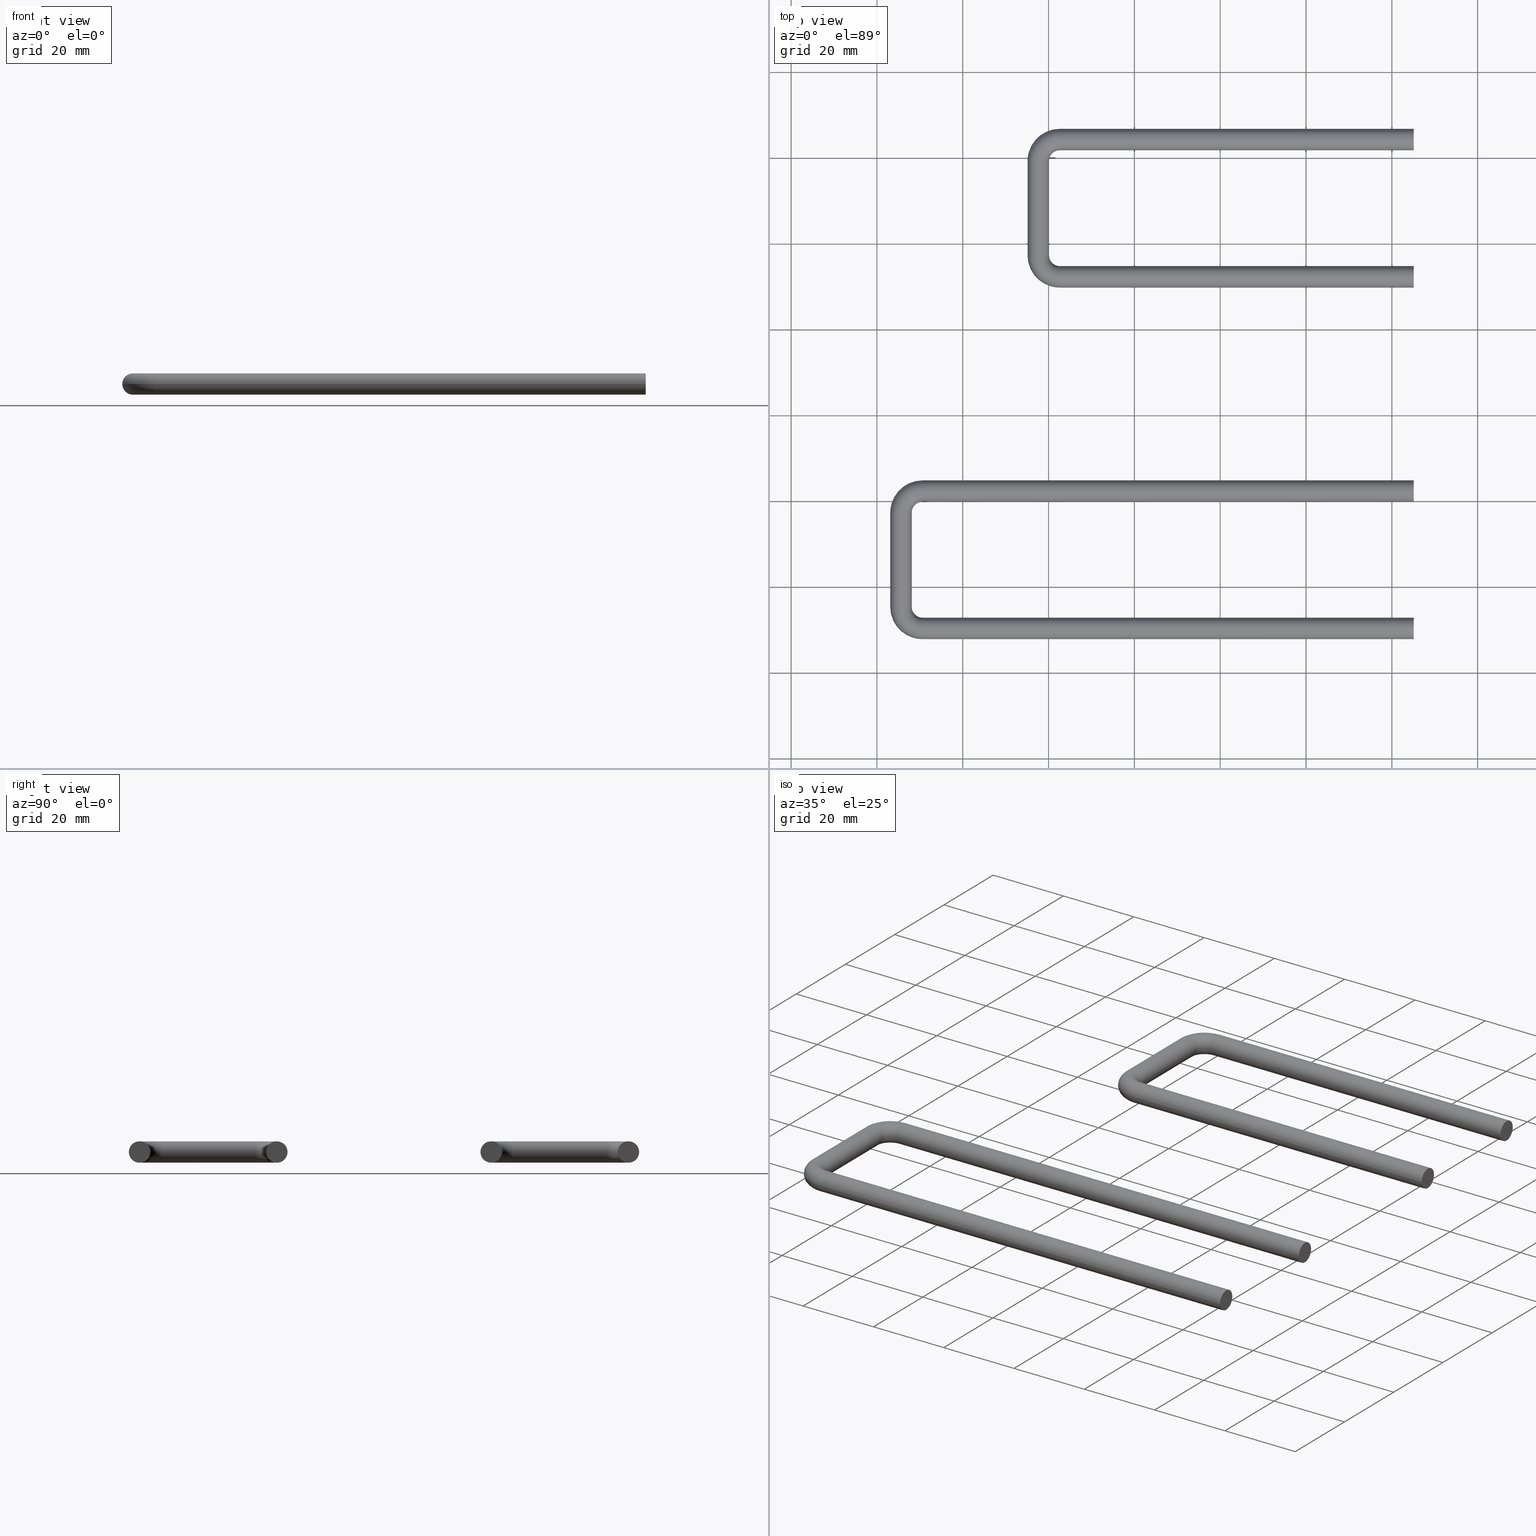
[diagram: canonical four-view strip — front | top / right | iso, engineering-drawing reading convention]
A machine part, canonical four-view strip (front | top / right | iso — engineering-drawing reading convention). The complete STEP part file that produces these views, byte-faithful:
ISO-10303-21;
HEADER;
/* Generated by software containing ST-Developer
 * from STEP Tools, Inc. (www.steptools.com) 
 */

FILE_DESCRIPTION(
/* description */ (''),
/* implementation_level */ '2;1');

FILE_NAME(
/* name */ '\\\\SYNOLOGYNAS\\web\\db2\\C-032-1\\\X2\B3C4BA74\X0\\\C-03
2-1,2.stp',
/* time_stamp */ '2025-01-09T14:08:21+09:00',
/* author */ ('user'),
/* organization */ (''),
/* preprocessor_version */ 'ST-DEVELOPER v15.6',
/* originating_system */ 'Autodesk Inventor 2015',
/* authorisation */ '');

FILE_SCHEMA (('AUTOMOTIVE_DESIGN { 1 0 10303 214 3 1 1 }'));
ENDSEC;

DATA;
#10=MECHANICAL_DESIGN_GEOMETRIC_PRESENTATION_REPRESENTATION('',(#23,#24),
#308);
#11=ITEM_DEFINED_TRANSFORMATION($,$,#165,#194);
#12=ITEM_DEFINED_TRANSFORMATION($,$,#179,#195);
#13=(
REPRESENTATION_RELATIONSHIP($,$,#323,#325)
REPRESENTATION_RELATIONSHIP_WITH_TRANSFORMATION(#11)
SHAPE_REPRESENTATION_RELATIONSHIP()
);
#14=(
REPRESENTATION_RELATIONSHIP($,$,#324,#325)
REPRESENTATION_RELATIONSHIP_WITH_TRANSFORMATION(#12)
SHAPE_REPRESENTATION_RELATIONSHIP()
);
#15=CONTEXT_DEPENDENT_SHAPE_REPRESENTATION(#13,#321);
#16=CONTEXT_DEPENDENT_SHAPE_REPRESENTATION(#14,#322);
#17=NEXT_ASSEMBLY_USAGE_OCCURRENCE('DR_C-032-41FS-90:1',$,$,#329,#327,$);
#18=NEXT_ASSEMBLY_USAGE_OCCURRENCE('DR_C-032-42FS-122:1',$,$,#329,#328,
$);
#19=SHAPE_REPRESENTATION_RELATIONSHIP('SRR','None',#323,#21);
#20=SHAPE_REPRESENTATION_RELATIONSHIP('SRR','None',#324,#22);
#21=ADVANCED_BREP_SHAPE_REPRESENTATION($,(#25),#305);
#22=ADVANCED_BREP_SHAPE_REPRESENTATION($,(#26),#306);
#23=STYLED_ITEM('',(#342),#25);
#24=STYLED_ITEM('',(#343),#26);
#25=MANIFOLD_SOLID_BREP('\X2\C194B9ACB4DC\X0\1',#163);
#26=MANIFOLD_SOLID_BREP('\X2\C194B9ACB4DC\X0\1',#164);
#27=PLANE('',#177);
#28=PLANE('',#178);
#29=PLANE('',#191);
#30=PLANE('',#192);
#31=TOROIDAL_SURFACE('',#169,5.,2.5);
#32=TOROIDAL_SURFACE('',#173,5.,2.5);
#33=TOROIDAL_SURFACE('',#183,5.,2.5);
#34=TOROIDAL_SURFACE('',#187,5.,2.5);
#35=FACE_BOUND('',#60,.T.);
#36=FACE_BOUND('',#62,.T.);
#37=FACE_BOUND('',#64,.T.);
#38=FACE_BOUND('',#66,.T.);
#39=FACE_BOUND('',#68,.T.);
#40=FACE_BOUND('',#72,.T.);
#41=FACE_BOUND('',#74,.T.);
#42=FACE_BOUND('',#76,.T.);
#43=FACE_BOUND('',#78,.T.);
#44=FACE_BOUND('',#80,.T.);
#45=FACE_OUTER_BOUND('',#59,.T.);
#46=FACE_OUTER_BOUND('',#61,.T.);
#47=FACE_OUTER_BOUND('',#63,.T.);
#48=FACE_OUTER_BOUND('',#65,.T.);
#49=FACE_OUTER_BOUND('',#67,.T.);
#50=FACE_OUTER_BOUND('',#69,.T.);
#51=FACE_OUTER_BOUND('',#70,.T.);
#52=FACE_OUTER_BOUND('',#71,.T.);
#53=FACE_OUTER_BOUND('',#73,.T.);
#54=FACE_OUTER_BOUND('',#75,.T.);
#55=FACE_OUTER_BOUND('',#77,.T.);
#56=FACE_OUTER_BOUND('',#79,.T.);
#57=FACE_OUTER_BOUND('',#81,.T.);
#58=FACE_OUTER_BOUND('',#82,.T.);
#59=EDGE_LOOP('',(#119));
#60=EDGE_LOOP('',(#120));
#61=EDGE_LOOP('',(#121));
#62=EDGE_LOOP('',(#122));
#63=EDGE_LOOP('',(#123));
#64=EDGE_LOOP('',(#124));
#65=EDGE_LOOP('',(#125));
#66=EDGE_LOOP('',(#126));
#67=EDGE_LOOP('',(#127));
#68=EDGE_LOOP('',(#128));
#69=EDGE_LOOP('',(#129));
#70=EDGE_LOOP('',(#130));
#71=EDGE_LOOP('',(#131));
#72=EDGE_LOOP('',(#132));
#73=EDGE_LOOP('',(#133));
#74=EDGE_LOOP('',(#134));
#75=EDGE_LOOP('',(#135));
#76=EDGE_LOOP('',(#136));
#77=EDGE_LOOP('',(#137));
#78=EDGE_LOOP('',(#138));
#79=EDGE_LOOP('',(#139));
#80=EDGE_LOOP('',(#140));
#81=EDGE_LOOP('',(#141));
#82=EDGE_LOOP('',(#142));
#83=CIRCLE('',#167,2.5);
#84=CIRCLE('',#168,2.5);
#85=CIRCLE('',#170,2.5);
#86=CIRCLE('',#172,2.5);
#87=CIRCLE('',#174,2.5);
#88=CIRCLE('',#176,2.5);
#89=CIRCLE('',#181,2.5);
#90=CIRCLE('',#182,2.5);
#91=CIRCLE('',#184,2.5);
#92=CIRCLE('',#186,2.5);
#93=CIRCLE('',#188,2.5);
#94=CIRCLE('',#190,2.5);
#95=VERTEX_POINT('',#260);
#96=VERTEX_POINT('',#262);
#97=VERTEX_POINT('',#265);
#98=VERTEX_POINT('',#268);
#99=VERTEX_POINT('',#271);
#100=VERTEX_POINT('',#274);
#101=VERTEX_POINT('',#280);
#102=VERTEX_POINT('',#282);
#103=VERTEX_POINT('',#285);
#104=VERTEX_POINT('',#288);
#105=VERTEX_POINT('',#291);
#106=VERTEX_POINT('',#294);
#107=EDGE_CURVE('',#95,#95,#83,.T.);
#108=EDGE_CURVE('',#96,#96,#84,.T.);
#109=EDGE_CURVE('',#97,#97,#85,.T.);
#110=EDGE_CURVE('',#98,#98,#86,.T.);
#111=EDGE_CURVE('',#99,#99,#87,.T.);
#112=EDGE_CURVE('',#100,#100,#88,.T.);
#113=EDGE_CURVE('',#101,#101,#89,.T.);
#114=EDGE_CURVE('',#102,#102,#90,.T.);
#115=EDGE_CURVE('',#103,#103,#91,.T.);
#116=EDGE_CURVE('',#104,#104,#92,.T.);
#117=EDGE_CURVE('',#105,#105,#93,.T.);
#118=EDGE_CURVE('',#106,#106,#94,.T.);
#119=ORIENTED_EDGE('',*,*,#107,.F.);
#120=ORIENTED_EDGE('',*,*,#108,.T.);
#121=ORIENTED_EDGE('',*,*,#108,.F.);
#122=ORIENTED_EDGE('',*,*,#109,.T.);
#123=ORIENTED_EDGE('',*,*,#109,.F.);
#124=ORIENTED_EDGE('',*,*,#110,.T.);
#125=ORIENTED_EDGE('',*,*,#110,.F.);
#126=ORIENTED_EDGE('',*,*,#111,.T.);
#127=ORIENTED_EDGE('',*,*,#111,.F.);
#128=ORIENTED_EDGE('',*,*,#112,.T.);
#129=ORIENTED_EDGE('',*,*,#107,.T.);
#130=ORIENTED_EDGE('',*,*,#112,.F.);
#131=ORIENTED_EDGE('',*,*,#113,.F.);
#132=ORIENTED_EDGE('',*,*,#114,.T.);
#133=ORIENTED_EDGE('',*,*,#114,.F.);
#134=ORIENTED_EDGE('',*,*,#115,.T.);
#135=ORIENTED_EDGE('',*,*,#115,.F.);
#136=ORIENTED_EDGE('',*,*,#116,.T.);
#137=ORIENTED_EDGE('',*,*,#116,.F.);
#138=ORIENTED_EDGE('',*,*,#117,.T.);
#139=ORIENTED_EDGE('',*,*,#117,.F.);
#140=ORIENTED_EDGE('',*,*,#118,.T.);
#141=ORIENTED_EDGE('',*,*,#113,.T.);
#142=ORIENTED_EDGE('',*,*,#118,.F.);
#143=CYLINDRICAL_SURFACE('',#166,2.5);
#144=CYLINDRICAL_SURFACE('',#171,2.5);
#145=CYLINDRICAL_SURFACE('',#175,2.5);
#146=CYLINDRICAL_SURFACE('',#180,2.5);
#147=CYLINDRICAL_SURFACE('',#185,2.5);
#148=CYLINDRICAL_SURFACE('',#189,2.5);
#149=ADVANCED_FACE('',(#45,#35),#143,.T.);
#150=ADVANCED_FACE('',(#46,#36),#31,.T.);
#151=ADVANCED_FACE('',(#47,#37),#144,.T.);
#152=ADVANCED_FACE('',(#48,#38),#32,.T.);
#153=ADVANCED_FACE('',(#49,#39),#145,.T.);
#154=ADVANCED_FACE('',(#50),#27,.T.);
#155=ADVANCED_FACE('',(#51),#28,.F.);
#156=ADVANCED_FACE('',(#52,#40),#146,.T.);
#157=ADVANCED_FACE('',(#53,#41),#33,.T.);
#158=ADVANCED_FACE('',(#54,#42),#147,.T.);
#159=ADVANCED_FACE('',(#55,#43),#34,.T.);
#160=ADVANCED_FACE('',(#56,#44),#148,.T.);
#161=ADVANCED_FACE('',(#57),#29,.T.);
#162=ADVANCED_FACE('',(#58),#30,.F.);
#163=CLOSED_SHELL('',(#149,#150,#151,#152,#153,#154,#155));
#164=CLOSED_SHELL('',(#156,#157,#158,#159,#160,#161,#162));
#165=AXIS2_PLACEMENT_3D('placement',#258,#196,#197);
#166=AXIS2_PLACEMENT_3D('',#259,#198,#199);
#167=AXIS2_PLACEMENT_3D('',#261,#200,#201);
#168=AXIS2_PLACEMENT_3D('',#263,#202,#203);
#169=AXIS2_PLACEMENT_3D('',#264,#204,#205);
#170=AXIS2_PLACEMENT_3D('',#266,#206,#207);
#171=AXIS2_PLACEMENT_3D('',#267,#208,#209);
#172=AXIS2_PLACEMENT_3D('',#269,#210,#211);
#173=AXIS2_PLACEMENT_3D('',#270,#212,#213);
#174=AXIS2_PLACEMENT_3D('',#272,#214,#215);
#175=AXIS2_PLACEMENT_3D('',#273,#216,#217);
#176=AXIS2_PLACEMENT_3D('',#275,#218,#219);
#177=AXIS2_PLACEMENT_3D('',#276,#220,#221);
#178=AXIS2_PLACEMENT_3D('',#277,#222,#223);
#179=AXIS2_PLACEMENT_3D('placement',#278,#224,#225);
#180=AXIS2_PLACEMENT_3D('',#279,#226,#227);
#181=AXIS2_PLACEMENT_3D('',#281,#228,#229);
#182=AXIS2_PLACEMENT_3D('',#283,#230,#231);
#183=AXIS2_PLACEMENT_3D('',#284,#232,#233);
#184=AXIS2_PLACEMENT_3D('',#286,#234,#235);
#185=AXIS2_PLACEMENT_3D('',#287,#236,#237);
#186=AXIS2_PLACEMENT_3D('',#289,#238,#239);
#187=AXIS2_PLACEMENT_3D('',#290,#240,#241);
#188=AXIS2_PLACEMENT_3D('',#292,#242,#243);
#189=AXIS2_PLACEMENT_3D('',#293,#244,#245);
#190=AXIS2_PLACEMENT_3D('',#295,#246,#247);
#191=AXIS2_PLACEMENT_3D('',#296,#248,#249);
#192=AXIS2_PLACEMENT_3D('',#297,#250,#251);
#193=AXIS2_PLACEMENT_3D('placement',#298,#252,#253);
#194=AXIS2_PLACEMENT_3D('',#299,#254,#255);
#195=AXIS2_PLACEMENT_3D('',#300,#256,#257);
#196=DIRECTION('axis',(0.,0.,1.));
#197=DIRECTION('refdir',(1.,0.,0.));
#198=DIRECTION('center_axis',(1.,0.,0.));
#199=DIRECTION('ref_axis',(0.,1.,0.));
#200=DIRECTION('center_axis',(1.,7.11884744652049E-16,0.));
#201=DIRECTION('ref_axis',(-7.11884744652049E-16,1.,0.));
#202=DIRECTION('center_axis',(1.,7.11884744652049E-16,0.));
#203=DIRECTION('ref_axis',(-7.11884744652049E-16,1.,0.));
#204=DIRECTION('center_axis',(0.,0.,1.));
#205=DIRECTION('ref_axis',(1.,0.,0.));
#206=DIRECTION('center_axis',(-1.15061335090709E-16,-1.,0.));
#207=DIRECTION('ref_axis',(1.,-1.15061335090709E-16,0.));
#208=DIRECTION('center_axis',(0.,-1.,0.));
#209=DIRECTION('ref_axis',(1.,0.,0.));
#210=DIRECTION('center_axis',(-1.15061335090709E-16,-1.,0.));
#211=DIRECTION('ref_axis',(1.,-1.15061335090709E-16,0.));
#212=DIRECTION('center_axis',(0.,0.,1.));
#213=DIRECTION('ref_axis',(1.,0.,0.));
#214=DIRECTION('center_axis',(-1.,5.38289951333409E-17,0.));
#215=DIRECTION('ref_axis',(-5.38289951333409E-17,-1.,0.));
#216=DIRECTION('center_axis',(-1.,5.38289951333409E-17,0.));
#217=DIRECTION('ref_axis',(-5.38289951333409E-17,-1.,0.));
#218=DIRECTION('center_axis',(-1.,5.38289951333409E-17,0.));
#219=DIRECTION('ref_axis',(-5.38289951333409E-17,-1.,0.));
#220=DIRECTION('center_axis',(1.,7.11884744652049E-16,0.));
#221=DIRECTION('ref_axis',(0.,0.,1.));
#222=DIRECTION('center_axis',(-1.,5.38289951333409E-17,0.));
#223=DIRECTION('ref_axis',(0.,0.,1.));
#224=DIRECTION('axis',(0.,0.,1.));
#225=DIRECTION('refdir',(1.,0.,0.));
#226=DIRECTION('center_axis',(1.,1.35747793403949E-16,0.));
#227=DIRECTION('ref_axis',(-1.35747793403949E-16,1.,0.));
#228=DIRECTION('center_axis',(1.,1.10245823063463E-16,0.));
#229=DIRECTION('ref_axis',(-1.10245823063463E-16,1.,0.));
#230=DIRECTION('center_axis',(1.,1.10245823063463E-16,0.));
#231=DIRECTION('ref_axis',(-1.10245823063463E-16,1.,0.));
#232=DIRECTION('center_axis',(0.,0.,1.));
#233=DIRECTION('ref_axis',(1.,0.,0.));
#234=DIRECTION('center_axis',(1.71478163020831E-16,-1.,0.));
#235=DIRECTION('ref_axis',(1.,1.71478163020831E-16,0.));
#236=DIRECTION('center_axis',(0.,-1.,0.));
#237=DIRECTION('ref_axis',(1.,0.,0.));
#238=DIRECTION('center_axis',(1.71478163020831E-16,-1.,0.));
#239=DIRECTION('ref_axis',(1.,1.71478163020831E-16,0.));
#240=DIRECTION('center_axis',(0.,0.,1.));
#241=DIRECTION('ref_axis',(1.,0.,0.));
#242=DIRECTION('center_axis',(-1.,-2.32710502978199E-16,0.));
#243=DIRECTION('ref_axis',(2.32710502978199E-16,-1.,0.));
#244=DIRECTION('center_axis',(-1.,-2.32710502978199E-16,0.));
#245=DIRECTION('ref_axis',(2.32710502978199E-16,-1.,0.));
#246=DIRECTION('center_axis',(-1.,-2.32710502978199E-16,0.));
#247=DIRECTION('ref_axis',(2.32710502978199E-16,-1.,0.));
#248=DIRECTION('center_axis',(1.,1.10245823063463E-16,0.));
#249=DIRECTION('ref_axis',(0.,0.,1.));
#250=DIRECTION('center_axis',(-1.,-2.32710502978199E-16,0.));
#251=DIRECTION('ref_axis',(0.,0.,1.));
#252=DIRECTION('axis',(0.,0.,1.));
#253=DIRECTION('refdir',(1.,0.,0.));
#254=DIRECTION('',(2.47198095326689E-16,-1.50487261540985E-16,1.));
#255=DIRECTION('',(1.,-3.6914915568786E-15,-2.4719809532669E-16));
#256=DIRECTION('',(5.66489797305112E-17,-1.10154940724507E-16,1.));
#257=DIRECTION('',(1.,7.77156117237594E-16,-5.66489797305112E-17));
#258=CARTESIAN_POINT('',(0.,0.,0.));
#259=CARTESIAN_POINT('Origin',(-38.75,-16.,0.));
#260=CARTESIAN_POINT('',(43.75,-18.5,3.06161699786838E-16));
#261=CARTESIAN_POINT('Origin',(43.75,-16.,0.));
#262=CARTESIAN_POINT('',(-38.75,-18.5,3.06161699786838E-16));
#263=CARTESIAN_POINT('Origin',(-38.75,-16.,0.));
#264=CARTESIAN_POINT('Origin',(-38.75,-11.,0.));
#265=CARTESIAN_POINT('',(-46.25,-11.,3.06161699786838E-16));
#266=CARTESIAN_POINT('Origin',(-43.75,-11.,0.));
#267=CARTESIAN_POINT('Origin',(-43.75,11.,0.));
#268=CARTESIAN_POINT('',(-46.25,11.,3.06161699786838E-16));
#269=CARTESIAN_POINT('Origin',(-43.75,11.,0.));
#270=CARTESIAN_POINT('Origin',(-38.75,11.,0.));
#271=CARTESIAN_POINT('',(-38.75,18.5,3.06161699786838E-16));
#272=CARTESIAN_POINT('Origin',(-38.75,16.,0.));
#273=CARTESIAN_POINT('Origin',(43.75,16.,0.));
#274=CARTESIAN_POINT('',(43.75,18.5,3.06161699786838E-16));
#275=CARTESIAN_POINT('Origin',(43.75,16.,0.));
#276=CARTESIAN_POINT('Origin',(43.75,-16.,4.62592926927149E-17));
#277=CARTESIAN_POINT('Origin',(43.75,16.,4.62592926927149E-17));
#278=CARTESIAN_POINT('',(0.,0.,0.));
#279=CARTESIAN_POINT('Origin',(-54.75,-16.,0.));
#280=CARTESIAN_POINT('',(59.75,-18.5,3.06161699786838E-16));
#281=CARTESIAN_POINT('Origin',(59.75,-16.,0.));
#282=CARTESIAN_POINT('',(-54.75,-18.5,3.06161699786838E-16));
#283=CARTESIAN_POINT('Origin',(-54.75,-16.,0.));
#284=CARTESIAN_POINT('Origin',(-54.75,-11.,0.));
#285=CARTESIAN_POINT('',(-62.25,-11.,3.06161699786838E-16));
#286=CARTESIAN_POINT('Origin',(-59.75,-11.,0.));
#287=CARTESIAN_POINT('Origin',(-59.75,11.,0.));
#288=CARTESIAN_POINT('',(-62.25,11.,3.06161699786838E-16));
#289=CARTESIAN_POINT('Origin',(-59.75,11.,0.));
#290=CARTESIAN_POINT('Origin',(-54.75,11.,0.));
#291=CARTESIAN_POINT('',(-54.75,18.5,3.06161699786838E-16));
#292=CARTESIAN_POINT('Origin',(-54.75,16.,0.));
#293=CARTESIAN_POINT('Origin',(59.75,16.,0.));
#294=CARTESIAN_POINT('',(59.75,18.5,3.06161699786838E-16));
#295=CARTESIAN_POINT('Origin',(59.75,16.,0.));
#296=CARTESIAN_POINT('Origin',(59.75,-16.,4.62592926927149E-17));
#297=CARTESIAN_POINT('Origin',(59.75,16.,4.62592926927149E-17));
#298=CARTESIAN_POINT('',(0.,0.,0.));
#299=CARTESIAN_POINT('',(121.354482219658,108.29472418712,5.01136735198646));
#300=CARTESIAN_POINT('',(105.354482219657,26.3495931122391,5.00858498435936));
#301=UNCERTAINTY_MEASURE_WITH_UNIT(LENGTH_MEASURE(0.01),#309,
'DISTANCE_ACCURACY_VALUE',
'Maximum model space distance between geometric entities at asserted c
onnectivities');
#302=UNCERTAINTY_MEASURE_WITH_UNIT(LENGTH_MEASURE(0.01),#309,
'DISTANCE_ACCURACY_VALUE',
'Maximum model space distance between geometric entities at asserted c
onnectivities');
#303=UNCERTAINTY_MEASURE_WITH_UNIT(LENGTH_MEASURE(0.01),#309,
'DISTANCE_ACCURACY_VALUE',
'Maximum model space distance between geometric entities at asserted c
onnectivities');
#304=UNCERTAINTY_MEASURE_WITH_UNIT(LENGTH_MEASURE(1.E-6),#309,
'DISTANCE_ACCURACY_VALUE',
'Maximum model space distance between geometric entities at asserted c
onnectivities');
#305=(
GEOMETRIC_REPRESENTATION_CONTEXT(3)
GLOBAL_UNCERTAINTY_ASSIGNED_CONTEXT((#301))
GLOBAL_UNIT_ASSIGNED_CONTEXT((#309,#312,#310))
REPRESENTATION_CONTEXT('','3D')
);
#306=(
GEOMETRIC_REPRESENTATION_CONTEXT(3)
GLOBAL_UNCERTAINTY_ASSIGNED_CONTEXT((#302))
GLOBAL_UNIT_ASSIGNED_CONTEXT((#309,#312,#310))
REPRESENTATION_CONTEXT('','3D')
);
#307=(
GEOMETRIC_REPRESENTATION_CONTEXT(3)
GLOBAL_UNCERTAINTY_ASSIGNED_CONTEXT((#303))
GLOBAL_UNIT_ASSIGNED_CONTEXT((#309,#312,#310))
REPRESENTATION_CONTEXT('','3D')
);
#308=(
GEOMETRIC_REPRESENTATION_CONTEXT(3)
GLOBAL_UNCERTAINTY_ASSIGNED_CONTEXT((#304))
GLOBAL_UNIT_ASSIGNED_CONTEXT((#309,#312,#310))
REPRESENTATION_CONTEXT('','3D')
);
#309=(
LENGTH_UNIT()
NAMED_UNIT(*)
SI_UNIT(.MILLI.,.METRE.)
);
#310=(
NAMED_UNIT(*)
SI_UNIT($,.STERADIAN.)
SOLID_ANGLE_UNIT()
);
#311=DIMENSIONAL_EXPONENTS(0.,0.,0.,0.,0.,0.,0.);
#312=(
CONVERSION_BASED_UNIT('degree',#314)
NAMED_UNIT(#311)
PLANE_ANGLE_UNIT()
);
#313=(
NAMED_UNIT(*)
PLANE_ANGLE_UNIT()
SI_UNIT($,.RADIAN.)
);
#314=PLANE_ANGLE_MEASURE_WITH_UNIT(PLANE_ANGLE_MEASURE(0.01745329252),#313);
#315=SHAPE_DEFINITION_REPRESENTATION(#318,#323);
#316=SHAPE_DEFINITION_REPRESENTATION(#319,#324);
#317=SHAPE_DEFINITION_REPRESENTATION(#320,#325);
#318=PRODUCT_DEFINITION_SHAPE('',$,#327);
#319=PRODUCT_DEFINITION_SHAPE('',$,#328);
#320=PRODUCT_DEFINITION_SHAPE('',$,#329);
#321=PRODUCT_DEFINITION_SHAPE($,$,#17);
#322=PRODUCT_DEFINITION_SHAPE($,$,#18);
#323=SHAPE_REPRESENTATION('',(#165),#305);
#324=SHAPE_REPRESENTATION('',(#179),#306);
#325=SHAPE_REPRESENTATION('',(#193,#194,#195),#307);
#326=PRODUCT_DEFINITION_CONTEXT('part definition',#337,'design');
#327=PRODUCT_DEFINITION('DR_C-032-41FS-90','DR_C-032-41FS-90',#330,#326);
#328=PRODUCT_DEFINITION('DR_C-032-42FS-122','DR_C-032-42FS-122',#331,#326);
#329=PRODUCT_DEFINITION('C-032-1,2(90,122)','C-032-1,2(90,122)',#332,#326);
#330=PRODUCT_DEFINITION_FORMATION('',$,#339);
#331=PRODUCT_DEFINITION_FORMATION('',$,#340);
#332=PRODUCT_DEFINITION_FORMATION('',$,#341);
#333=PRODUCT_RELATED_PRODUCT_CATEGORY('DR_C-032-41FS-90',
'DR_C-032-41FS-90',(#339));
#334=PRODUCT_RELATED_PRODUCT_CATEGORY('DR_C-032-42FS-122',
'DR_C-032-42FS-122',(#340));
#335=PRODUCT_RELATED_PRODUCT_CATEGORY('C-032-1,2(90,122)',
'C-032-1,2(90,122)',(#341));
#336=APPLICATION_PROTOCOL_DEFINITION('international standard',
'automotive_design',2009,#337);
#337=APPLICATION_CONTEXT(
'Core Data for Automotive Mechanical Design Process');
#338=PRODUCT_CONTEXT('part definition',#337,'mechanical');
#339=PRODUCT('DR_C-032-41FS-90','DR_C-032-41FS-90',$,(#338));
#340=PRODUCT('DR_C-032-42FS-122','DR_C-032-42FS-122',$,(#338));
#341=PRODUCT('C-032-1,2(90,122)','C-032-1,2(90,122)',$,(#338));
#342=PRESENTATION_STYLE_ASSIGNMENT((#344));
#343=PRESENTATION_STYLE_ASSIGNMENT((#345));
#344=SURFACE_STYLE_USAGE(.BOTH.,#346);
#345=SURFACE_STYLE_USAGE(.BOTH.,#347);
#346=SURFACE_SIDE_STYLE($,(#348));
#347=SURFACE_SIDE_STYLE($,(#349));
#348=SURFACE_STYLE_FILL_AREA(#350);
#349=SURFACE_STYLE_FILL_AREA(#351);
#350=FILL_AREA_STYLE($,(#352));
#351=FILL_AREA_STYLE($,(#353));
#352=FILL_AREA_STYLE_COLOUR($,#354);
#353=FILL_AREA_STYLE_COLOUR($,#355);
#354=COLOUR_RGB('',1.,1.,1.);
#355=COLOUR_RGB('',1.,1.,1.);
ENDSEC;
END-ISO-10303-21;
